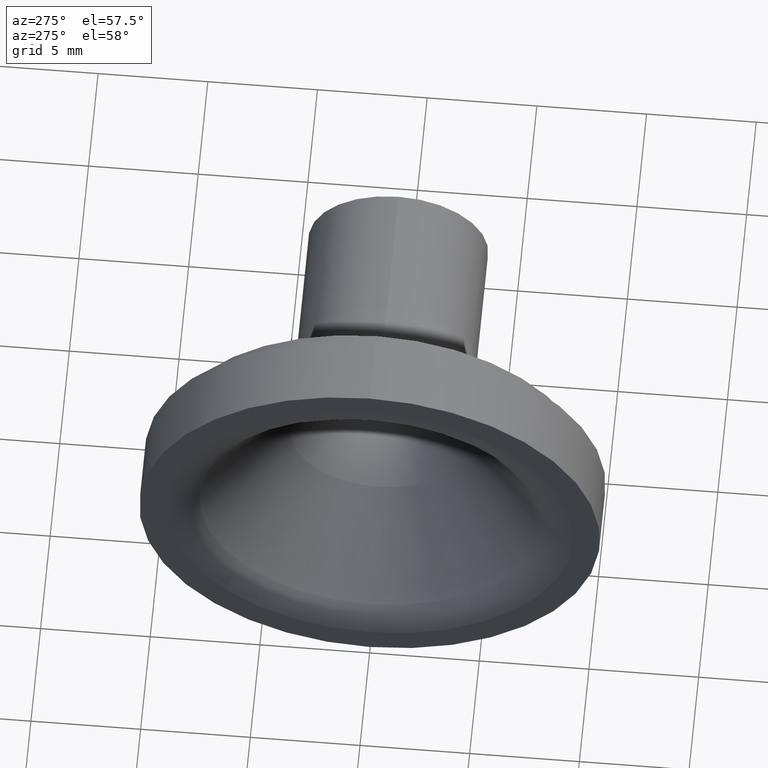
[diagram: clean part render]
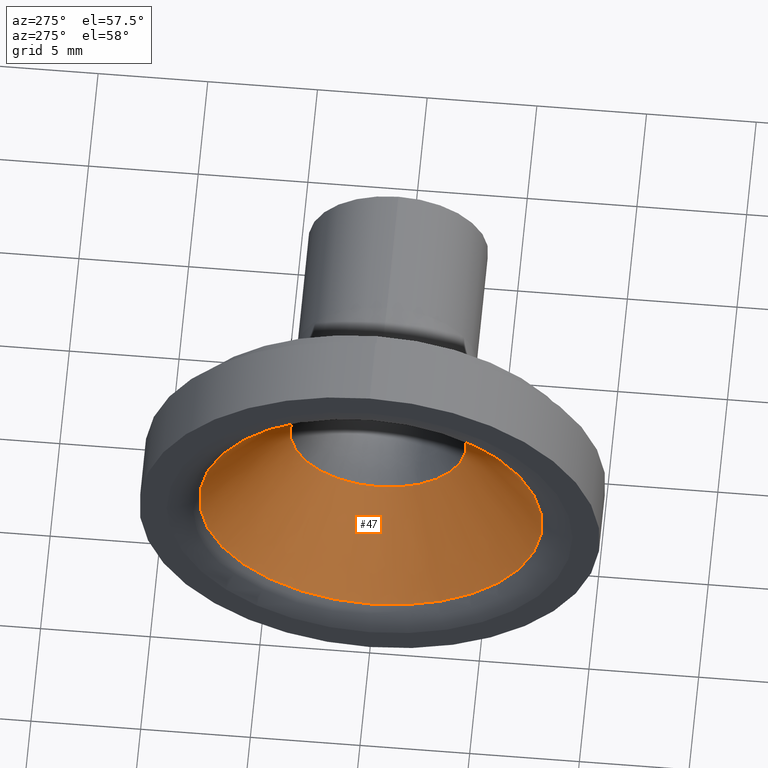
[diagram: same view with one face highlighted and labeled with its STEP entity id]
A machine part, auxiliary view. The second image highlights one B-rep face of the part: STEP entity #47.
In plain terms, the highlighted conical surface has half-angle 44.199 deg.
Its self-contained STEP definition (entity closure, byte-faithful):
#47 = ADVANCED_FACE( '', ( #100, #101 ), #102, .F. );
#100 = FACE_OUTER_BOUND( '', #159, .T. );
#101 = FACE_BOUND( '', #160, .T. );
#102 = CONICAL_SURFACE( '', #161, 4.01539062280390, 0.771419366951203 );
#159 = EDGE_LOOP( '', ( #222 ) );
#160 = EDGE_LOOP( '', ( #223 ) );
#161 = AXIS2_PLACEMENT_3D( '', #224, #225, #226 );
#222 = ORIENTED_EDGE( '', *, *, #283, .T. );
#223 = ORIENTED_EDGE( '', *, *, #284, .F. );
#224 = CARTESIAN_POINT( '', ( 4.51423242127107, 0.000000000000000, 0.000000000000000 ) );
#225 = DIRECTION( '', ( -1.00000000000000, 0.000000000000000, -0.000000000000000 ) );
#226 = DIRECTION( '', ( 0.000000000000000, 0.000000000000000, 1.00000000000000 ) );
#283 = EDGE_CURVE( '', #317, #317, #318, .T. );
#284 = EDGE_CURVE( '', #319, #319, #320, .T. );
#317 = VERTEX_POINT( '', #356 );
#318 = CIRCLE( '', #357, 7.81615624912156 );
#319 = VERTEX_POINT( '', #358 );
#320 = CIRCLE( '', #359, 4.01539062280390 );
#356 = CARTESIAN_POINT( '', ( 0.605692968508431, 0.000000000000000, 7.81615624912156 ) );
#357 = AXIS2_PLACEMENT_3D( '', #397, #398, #399 );
#358 = CARTESIAN_POINT( '', ( 4.51423242127107, 0.000000000000000, 4.01539062280390 ) );
#359 = AXIS2_PLACEMENT_3D( '', #400, #401, #402 );
#397 = CARTESIAN_POINT( '', ( 0.605692968508431, 0.000000000000000, 0.000000000000000 ) );
#398 = DIRECTION( '', ( -1.00000000000000, 0.000000000000000, 0.000000000000000 ) );
#399 = DIRECTION( '', ( 0.000000000000000, 0.000000000000000, 1.00000000000000 ) );
#400 = CARTESIAN_POINT( '', ( 4.51423242127107, 0.000000000000000, 0.000000000000000 ) );
#401 = DIRECTION( '', ( -1.00000000000000, 0.000000000000000, 0.000000000000000 ) );
#402 = DIRECTION( '', ( 0.000000000000000, 0.000000000000000, 1.00000000000000 ) );